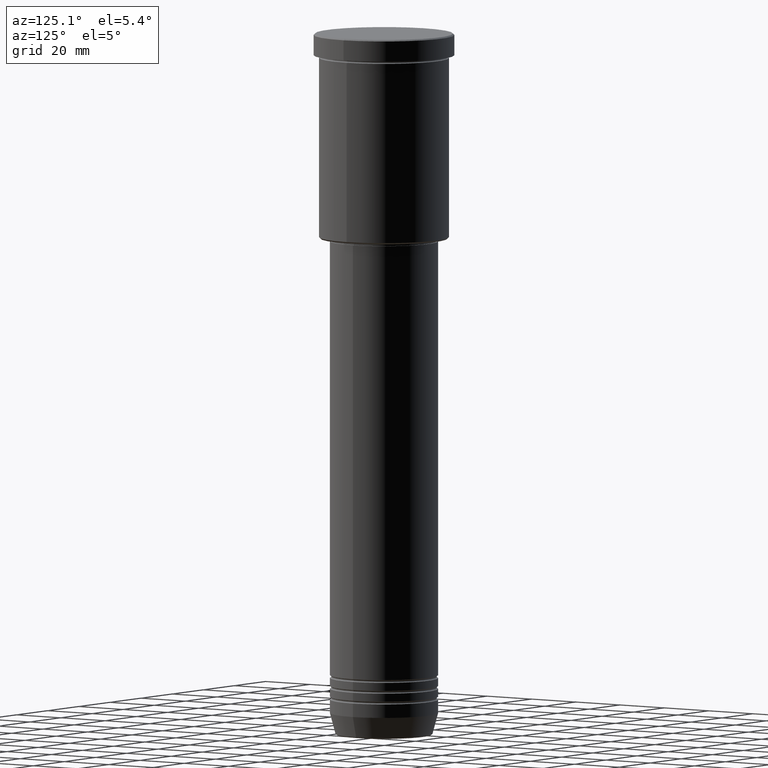
[diagram: clean part render]
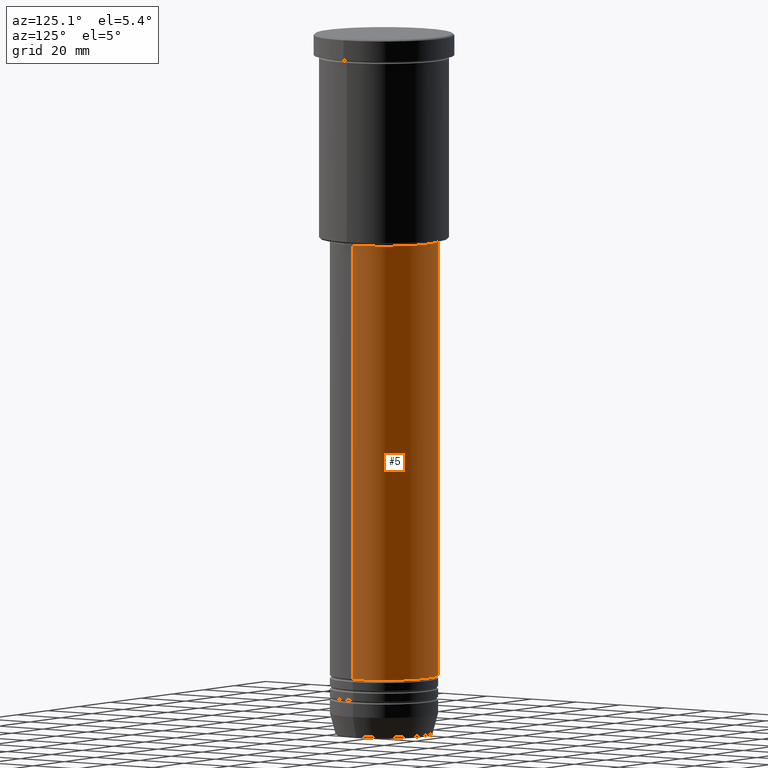
[diagram: same view with one face highlighted and labeled with its STEP entity id]
A machine part, auxiliary view. The second image highlights one B-rep face of the part: STEP entity #5.
In plain terms, the highlighted cylindrical surface (partial cylindrical patch) has radius 20 mm, axis along (-0, -0, 1).
Its self-contained STEP definition (entity closure, byte-faithful):
#2 = VERTEX_POINT ( 'NONE', #106 ) ;
#4 = LINE ( 'NONE', #368, #697 ) ;
#5 = ADVANCED_FACE ( 'NONE', ( #465 ), #224, .T. ) ;
#81 = DIRECTION ( 'NONE',  ( -0.000000000000000000, -0.000000000000000000, 1.000000000000000000 ) ) ;
#103 = EDGE_CURVE ( 'NONE', #1003, #2, #674, .T. ) ;
#106 = CARTESIAN_POINT ( 'NONE',  ( -20.00000000000000355, 2.449293598294706907E-15, -238.0000000000000000 ) ) ;
#115 = ORIENTED_EDGE ( 'NONE', *, *, #566, .T. ) ;
#127 = AXIS2_PLACEMENT_3D ( 'NONE', #407, #81, #769 ) ;
#200 = EDGE_LOOP ( 'NONE', ( #956, #115, #326, #791 ) ) ;
#224 = CYLINDRICAL_SURFACE ( 'NONE', #947, 20.00000000000000355 ) ;
#284 = DIRECTION ( 'NONE',  ( -0.000000000000000000, -0.000000000000000000, 1.000000000000000000 ) ) ;
#309 = EDGE_CURVE ( 'NONE', #800, #827, #392, .T. ) ;
#325 = CARTESIAN_POINT ( 'NONE',  ( 20.00000000000000355, 0.000000000000000000, 0.000000000000000000 ) ) ;
#326 = ORIENTED_EDGE ( 'NONE', *, *, #309, .F. ) ;
#365 = CARTESIAN_POINT ( 'NONE',  ( 20.00000000000000355, 0.000000000000000000, -238.0000000000000000 ) ) ;
#368 = CARTESIAN_POINT ( 'NONE',  ( -20.00000000000000355, 2.449293598294706907E-15, 0.000000000000000000 ) ) ;
#392 = CIRCLE ( 'NONE', #464, 20.00000000000000355 ) ;
#399 = DIRECTION ( 'NONE',  ( -0.000000000000000000, -0.000000000000000000, 1.000000000000000000 ) ) ;
#401 = DIRECTION ( 'NONE',  ( -0.000000000000000000, -0.000000000000000000, 1.000000000000000000 ) ) ;
#407 = CARTESIAN_POINT ( 'NONE',  ( 0.000000000000000000, 0.000000000000000000, -238.0000000000000000 ) ) ;
#442 = VECTOR ( 'NONE', #687, 1000.000000000000000 ) ;
#464 = AXIS2_PLACEMENT_3D ( 'NONE', #1146, #399, #1134 ) ;
#465 = FACE_OUTER_BOUND ( 'NONE', #200, .T. ) ;
#566 = EDGE_CURVE ( 'NONE', #2, #827, #4, .T. ) ;
#674 = CIRCLE ( 'NONE', #127, 20.00000000000000355 ) ;
#680 = CARTESIAN_POINT ( 'NONE',  ( -20.00000000000000355, 2.449293598294706907E-15, -77.00000000000001421 ) ) ;
#687 = DIRECTION ( 'NONE',  ( -0.000000000000000000, -0.000000000000000000, 1.000000000000000000 ) ) ;
#697 = VECTOR ( 'NONE', #284, 1000.000000000000000 ) ;
#769 = DIRECTION ( 'NONE',  ( 1.000000000000000000, 0.000000000000000000, 0.000000000000000000 ) ) ;
#791 = ORIENTED_EDGE ( 'NONE', *, *, #968, .F. ) ;
#800 = VERTEX_POINT ( 'NONE', #1127 ) ;
#827 = VERTEX_POINT ( 'NONE', #680 ) ;
#930 = DIRECTION ( 'NONE',  ( 1.000000000000000000, 0.000000000000000000, 0.000000000000000000 ) ) ;
#947 = AXIS2_PLACEMENT_3D ( 'NONE', #1030, #401, #930 ) ;
#956 = ORIENTED_EDGE ( 'NONE', *, *, #103, .T. ) ;
#968 = EDGE_CURVE ( 'NONE', #1003, #800, #1147, .T. ) ;
#1003 = VERTEX_POINT ( 'NONE', #365 ) ;
#1030 = CARTESIAN_POINT ( 'NONE',  ( 0.000000000000000000, 0.000000000000000000, 0.000000000000000000 ) ) ;
#1127 = CARTESIAN_POINT ( 'NONE',  ( 20.00000000000000355, 0.000000000000000000, -77.00000000000001421 ) ) ;
#1134 = DIRECTION ( 'NONE',  ( 1.000000000000000000, 0.000000000000000000, 0.000000000000000000 ) ) ;
#1146 = CARTESIAN_POINT ( 'NONE',  ( 0.000000000000000000, 0.000000000000000000, -77.00000000000001421 ) ) ;
#1147 = LINE ( 'NONE', #325, #442 ) ;